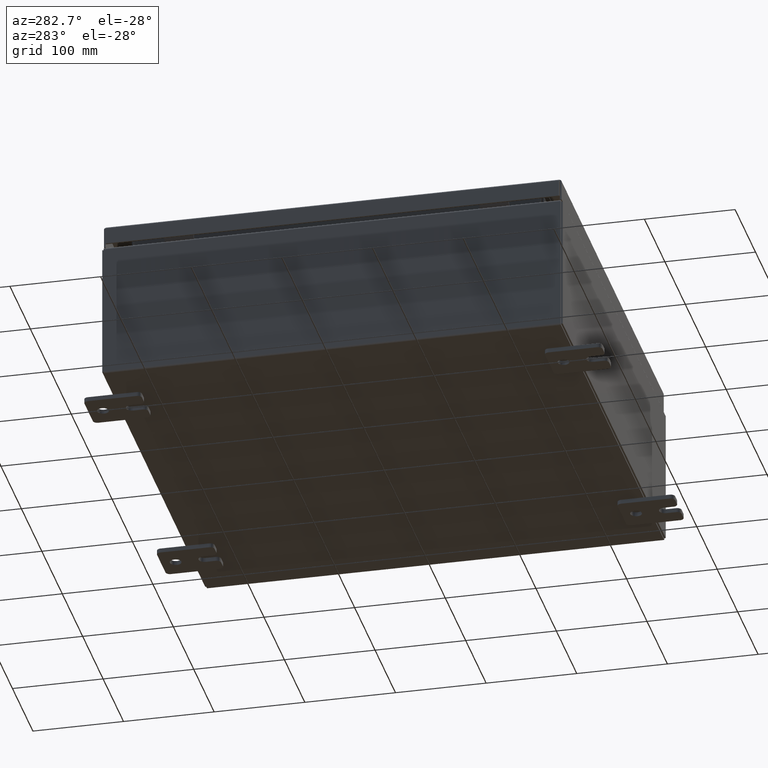
[diagram: clean part render]
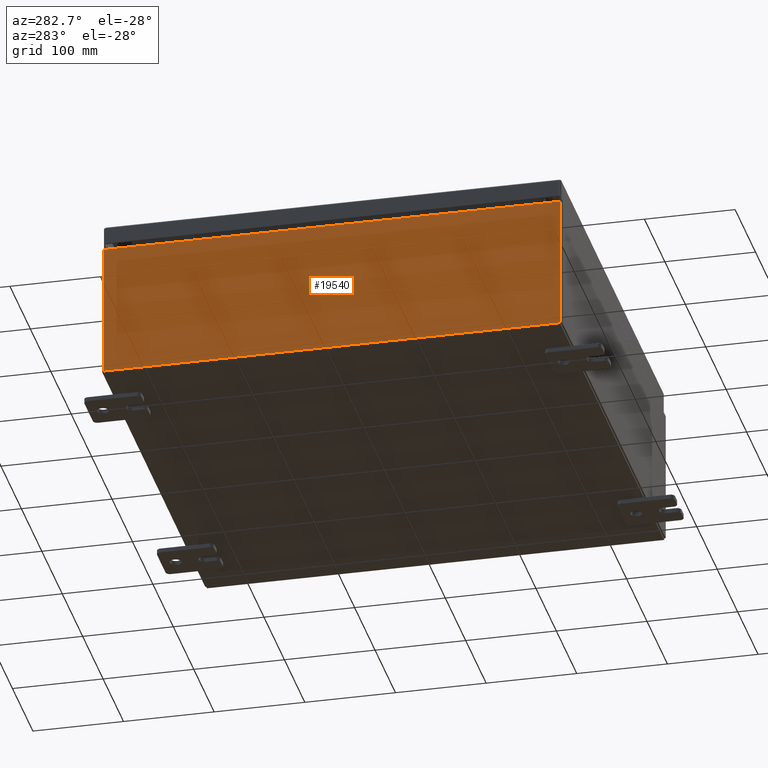
[diagram: same view with one face highlighted and labeled with its STEP entity id]
A machine part, auxiliary view. The second image highlights one B-rep face of the part: STEP entity #19540.
In plain terms, the highlighted planar face has unit normal (1, 0, 0).
Its self-contained STEP definition (entity closure, byte-faithful):
#2958 = DIRECTION ( 'NONE',  ( 3.319545939341922800E-015, 0.0000000000000000000, -1.000000000000000000 ) ) ;
#7606 = CARTESIAN_POINT ( 'NONE',  ( -10.00000000000000000, 0.0000000000000000000, -3.344806387242682200E-014 ) ) ;
#13829 = VECTOR ( 'NONE', #51519, 39.37007874015748100 ) ;
#14508 = VERTEX_POINT ( 'NONE', #16271 ) ;
#16271 = CARTESIAN_POINT ( 'NONE',  ( -10.00000000000002000, -9.925299999999991100, 5.837599999999999200 ) ) ;
#19540 = ADVANCED_FACE ( 'NONE', ( #58028 ), #60983, .F. ) ;
#22495 = VERTEX_POINT ( 'NONE', #57095 ) ;
#22546 = EDGE_CURVE ( 'NONE', #14508, #22495, #48948, .T. ) ;
#25985 = CARTESIAN_POINT ( 'NONE',  ( -10.00000000000000000, 9.925300000000001800, 0.01299999999999986800 ) ) ;
#26862 = AXIS2_PLACEMENT_3D ( 'NONE', #7606, #31946, #2958 ) ;
#26986 = EDGE_CURVE ( 'NONE', #22495, #40483, #50937, .T. ) ;
#27388 = CARTESIAN_POINT ( 'NONE',  ( -10.00000000000000000, -9.925299999999996500, 0.01299999999999986800 ) ) ;
#28303 = CARTESIAN_POINT ( 'NONE',  ( -10.00000000000002000, -9.925299999999992900, 5.837599999999999200 ) ) ;
#30181 = DIRECTION ( 'NONE',  ( -3.319545939341922800E-015, 0.0000000000000000000, 1.000000000000000000 ) ) ;
#30956 = ORIENTED_EDGE ( 'NONE', *, *, #53600, .F. ) ;
#31946 = DIRECTION ( 'NONE',  ( 1.000000000000000000, 0.0000000000000000000, 3.319545939341922800E-015 ) ) ;
#36024 = VECTOR ( 'NONE', #42893, 39.37007874015748100 ) ;
#36431 = EDGE_CURVE ( 'NONE', #44912, #14508, #36628, .T. ) ;
#36522 = ORIENTED_EDGE ( 'NONE', *, *, #22546, .T. ) ;
#36628 = LINE ( 'NONE', #49446, #60903 ) ;
#40483 = VERTEX_POINT ( 'NONE', #62520 ) ;
#41301 = ORIENTED_EDGE ( 'NONE', *, *, #26986, .T. ) ;
#42893 = DIRECTION ( 'NONE',  ( 0.0000000000000000000, 1.000000000000000000, 0.0000000000000000000 ) ) ;
#44903 = LINE ( 'NONE', #25985, #54751 ) ;
#44912 = VERTEX_POINT ( 'NONE', #27388 ) ;
#46643 = CARTESIAN_POINT ( 'NONE',  ( -10.00000000000000000, 9.925300000000001800, -3.344806387242682200E-014 ) ) ;
#48948 = LINE ( 'NONE', #28303, #36024 ) ;
#48955 = ORIENTED_EDGE ( 'NONE', *, *, #36431, .T. ) ;
#49446 = CARTESIAN_POINT ( 'NONE',  ( -10.00000000000000000, -9.925299999999998200, -3.344806387242682200E-014 ) ) ;
#50937 = LINE ( 'NONE', #46643, #13829 ) ;
#51519 = DIRECTION ( 'NONE',  ( 3.319545939341922800E-015, 0.0000000000000000000, -1.000000000000000000 ) ) ;
#51746 = EDGE_LOOP ( 'NONE', ( #36522, #41301, #30956, #48955 ) ) ;
#53600 = EDGE_CURVE ( 'NONE', #44912, #40483, #44903, .T. ) ;
#54751 = VECTOR ( 'NONE', #54977, 39.37007874015748100 ) ;
#54977 = DIRECTION ( 'NONE',  ( -0.0000000000000000000, 1.000000000000000000, -0.0000000000000000000 ) ) ;
#57095 = CARTESIAN_POINT ( 'NONE',  ( -10.00000000000002000, 9.925300000000001800, 5.837599999999999200 ) ) ;
#58028 = FACE_OUTER_BOUND ( 'NONE', #51746, .T. ) ;
#60903 = VECTOR ( 'NONE', #30181, 39.37007874015748100 ) ;
#60983 = PLANE ( 'NONE',  #26862 ) ;
#62520 = CARTESIAN_POINT ( 'NONE',  ( -10.00000000000000000, 9.925300000000001800, 0.01299999999999985900 ) ) ;